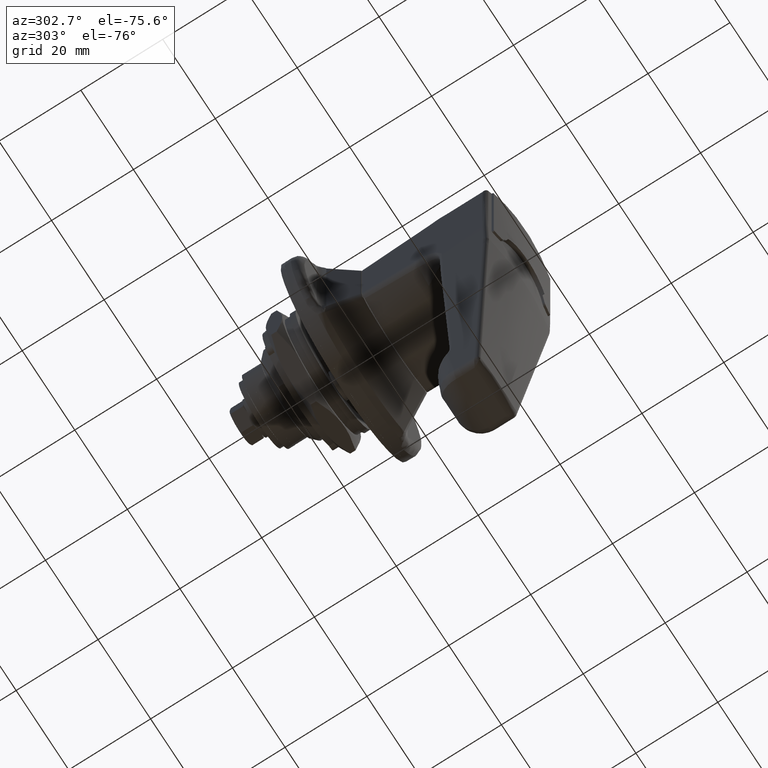
[diagram: clean part render]
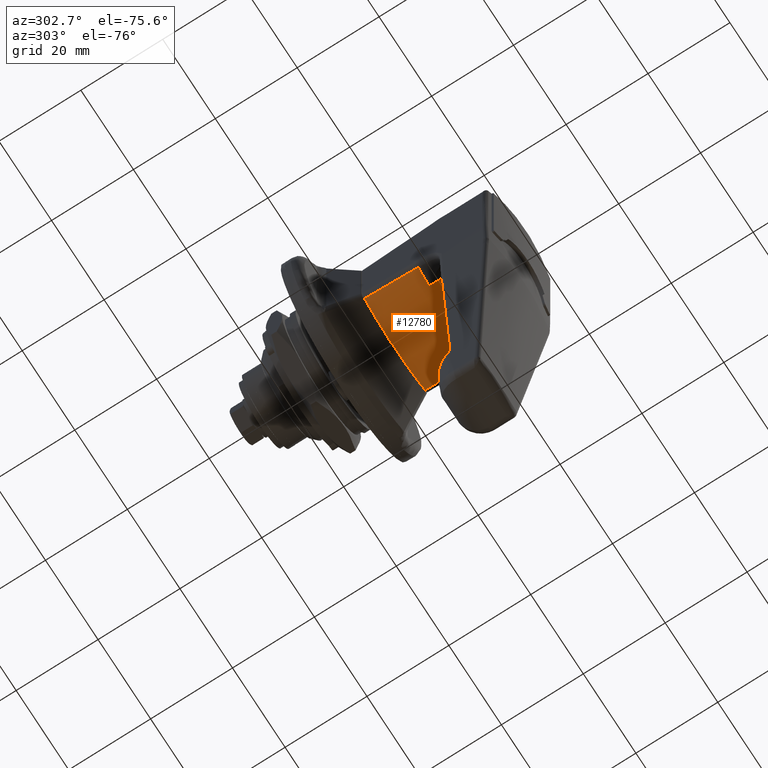
[diagram: same view with one face highlighted and labeled with its STEP entity id]
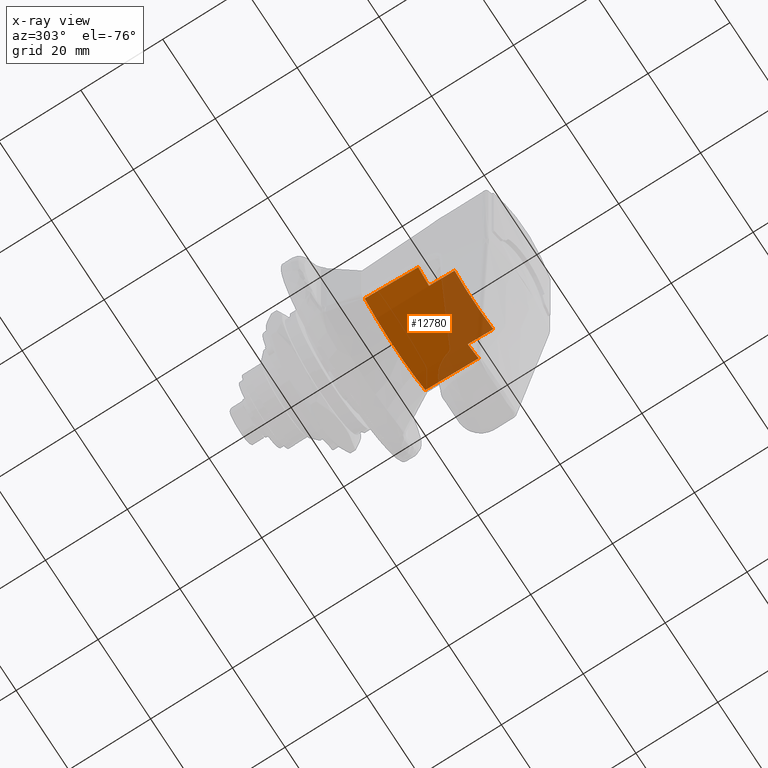
[diagram: x-ray of the same camera — body ghosted, the highlighted face saturated]
A machine part, auxiliary view. The second image highlights one B-rep face of the part: STEP entity #12780.
The next image is the same camera in x-ray: the body ghosted, the highlighted face saturated — about 33% of this face is hidden behind the body in this view.
In plain terms, the highlighted face is a freeform B-spline surface patch.
Its self-contained STEP definition (entity closure, byte-faithful):
#5366=CARTESIAN_POINT('',(-12.500000000000000,-11.544799616762139,-10.727455828510220));
#5367=VERTEX_POINT('',#5366);
#5397=CARTESIAN_POINT('',(-25.568854370816599,-11.483614284404000,-12.209910134553599));
#5398=VERTEX_POINT('',#5397);
#5412=CARTESIAN_POINT('',(-12.500000000000000,-11.544799616762139,-10.727455828510220));
#5413=CARTESIAN_POINT('',(-16.855539067573680,-11.523139544758299,-11.228108435169320));
#5414=CARTESIAN_POINT('',(-21.211887361958109,-11.502818028004210,-11.721739926355429));
#5415=CARTESIAN_POINT('',(-25.568854370816599,-11.483614284404000,-12.209910134553599));
#5416=QUASI_UNIFORM_CURVE('',3,(#5412,#5413,#5414,#5415),.UNSPECIFIED.,.F.,.U.);
#5417=EDGE_CURVE('',#5367,#5398,#5416,.T.);
#6825=CARTESIAN_POINT('',(-25.568854370816599,11.483614284404000,-12.209910134553560));
#6826=VERTEX_POINT('',#6825);
#6890=CARTESIAN_POINT('',(-12.500000000000000,11.544799616762161,-10.727455828510200));
#6891=VERTEX_POINT('',#6890);
#6914=CARTESIAN_POINT('',(-25.568854370816599,11.483614284404000,-12.209910134553541));
#6915=CARTESIAN_POINT('',(-21.211887190234560,11.502818028761100,-11.721739907114850));
#6916=CARTESIAN_POINT('',(-16.855539276879380,11.523139543717431,-11.228108459228190));
#6917=CARTESIAN_POINT('',(-12.500000000000000,11.544799616762139,-10.727455828510200));
#6918=QUASI_UNIFORM_CURVE('',3,(#6914,#6915,#6916,#6917),.UNSPECIFIED.,.F.,.U.);
#6919=EDGE_CURVE('',#6826,#6891,#6918,.T.);
#9877=CARTESIAN_POINT('',(-25.568854370816599,7.366160115824199,-14.046622186351801));
#9878=VERTEX_POINT('',#9877);
#9879=CARTESIAN_POINT('',(-25.568854370816599,7.366160115824205,-14.046622186351810));
#9880=CARTESIAN_POINT('',(-25.568854370816599,9.514371325748535,-13.328867439109526));
#9881=CARTESIAN_POINT('',(-25.568854370816599,11.483614284404011,-12.209910134553580));
#9889=(BOUNDED_CURVE()B_SPLINE_CURVE(2,(#9879,#9880,#9881),.UNSPECIFIED.,.F.,.U.)CURVE()GEOMETRIC_REPRESENTATION_ITEM()QUASI_UNIFORM_CURVE()RATIONAL_B_SPLINE_CURVE((1.0,0.995286313680354,1.0))REPRESENTATION_ITEM(''));
#9890=EDGE_CURVE('',#9878,#6826,#9889,.T.);
#9967=CARTESIAN_POINT('',(-25.568854370816599,-7.366160115823630,-14.046622186352000));
#9968=VERTEX_POINT('',#9967);
#9969=CARTESIAN_POINT('',(-25.568854370816599,-11.483614284404000,-12.209910134553610));
#9970=CARTESIAN_POINT('',(-25.568854370816602,-9.514371325748256,-13.328867439109713));
#9971=CARTESIAN_POINT('',(-25.568854370816599,-7.366160115823648,-14.046622186352019));
#9979=(BOUNDED_CURVE()B_SPLINE_CURVE(2,(#9969,#9970,#9971),.UNSPECIFIED.,.F.,.U.)CURVE()GEOMETRIC_REPRESENTATION_ITEM()QUASI_UNIFORM_CURVE()RATIONAL_B_SPLINE_CURVE((1.0,0.995286313680353,1.0))REPRESENTATION_ITEM(''));
#9980=EDGE_CURVE('',#5398,#9968,#9979,.T.);
#11621=CARTESIAN_POINT('',(-31.812009514778559,7.382904629250580,-14.667201120378699));
#11622=VERTEX_POINT('',#11621);
#12132=CARTESIAN_POINT('',(-31.812009514778701,-7.382904629259170,-14.667201120375919));
#12133=VERTEX_POINT('',#12132);
#12311=CARTESIAN_POINT('',(-31.812009514778591,7.382904629250580,-14.667201120378699));
#12312=CARTESIAN_POINT('',(-31.806754729762591,7.083561595264651,-14.764173418831991));
#12313=CARTESIAN_POINT('',(-31.801664824974068,6.782123492833700,-14.855295260424990));
#12314=CARTESIAN_POINT('',(-31.791922105842609,6.175033660008601,-15.025777787178001));
#12315=CARTESIAN_POINT('',(-31.787266927986479,5.869146148828927,-15.105172804853099));
#12316=CARTESIAN_POINT('',(-31.774185888687580,4.951249677149717,-15.324203266812340));
#12317=CARTESIAN_POINT('',(-31.766617837985141,4.337089586829030,-15.445299844357841));
#12318=CARTESIAN_POINT('',(-31.754289758865841,3.104422969221807,-15.638930200425120));
#12319=CARTESIAN_POINT('',(-31.744768241348751,1.867409462973651,-15.783992602001261));
#12320=CARTESIAN_POINT('',(-31.741500866108598,0.621760089024332,-15.832608275277259));
#12321=CARTESIAN_POINT('',(-31.741512180908821,-0.628258146861777,-15.832438940986689));
#12322=CARTESIAN_POINT('',(-31.743157609624070,-1.255451418622431,-15.807964904282670));
#12323=CARTESIAN_POINT('',(-31.749709488377029,-2.514341976014428,-15.708715245472630));
#12324=CARTESIAN_POINT('',(-31.754571333677230,-3.137626720459240,-15.634594284686941));
#12325=CARTESIAN_POINT('',(-31.767016417959869,-4.371608466077708,-15.438948078075351));
#12326=CARTESIAN_POINT('',(-31.782183722813858,-5.593224120579549,-15.195873765312321));
#12327=CARTESIAN_POINT('',(-31.801609044564341,-6.790433519717006,-14.859132378954151));
#12328=CARTESIAN_POINT('',(-31.812009514778701,-7.382904629259167,-14.667201120375919));
#12329=B_SPLINE_CURVE_WITH_KNOTS('',3,(#12311,#12312,#12313,#12314,#12315,#12316,#12317,#12318,#12319,#12320,#12321,#12322,#12323,#12324,#12325,#12326,#12327,#12328),.UNSPECIFIED.,.F.,.U.,(4,2,2,2,1,2,2,2,1,4),(0.0,0.062500000000000,0.125000000000000,0.250000000000000,0.375000000000000,0.500000000000000,0.625000000000000,0.750000000000000,0.875000000000000,1.0),.UNSPECIFIED.);
#12330=EDGE_CURVE('',#11622,#12133,#12329,.T.);
#12432=CARTESIAN_POINT('',(-25.568854370816599,7.366160115824199,-14.046622186351801));
#12433=CARTESIAN_POINT('',(-27.649895007099730,7.372161999072266,-14.253581161856751));
#12434=CARTESIAN_POINT('',(-29.730946951687070,7.377741070979279,-14.460438564194069));
#12435=CARTESIAN_POINT('',(-31.812009514778559,7.382904629250580,-14.667201120378699));
#12436=QUASI_UNIFORM_CURVE('',3,(#12432,#12433,#12434,#12435),.UNSPECIFIED.,.F.,.U.);
#12437=EDGE_CURVE('',#9878,#11622,#12436,.T.);
#12479=CARTESIAN_POINT('',(-31.812009514778801,-7.382904629259170,-14.667201120375941));
#12480=CARTESIAN_POINT('',(-29.730946995532371,-7.377741071088089,-14.460438568550289));
#12481=CARTESIAN_POINT('',(-27.649895051240261,-7.372161999199584,-14.253581166246510));
#12482=CARTESIAN_POINT('',(-25.568854370816599,-7.366160115823647,-14.046622186351980));
#12483=QUASI_UNIFORM_CURVE('',3,(#12479,#12480,#12481,#12482),.UNSPECIFIED.,.F.,.U.);
#12484=EDGE_CURVE('',#12133,#9968,#12483,.T.);
#12744=CARTESIAN_POINT('',(-12.017199762130531,-12.228098330369770,-10.233281746128061));
#12745=CARTESIAN_POINT('',(-32.306879758594903,-13.304391642870289,-11.838139564416650));
#12746=CARTESIAN_POINT('',(-12.017199762130533,0.186175451075092,-18.558879003565000));
#12747=CARTESIAN_POINT('',(-32.306879758594903,0.202562250357383,-20.896539618221112));
#12748=CARTESIAN_POINT('',(-12.017199762130538,12.482511543199855,-10.060062502238450));
#12749=CARTESIAN_POINT('',(-32.306879758594889,13.581197809386470,-11.649673901275426));
#12757=(BOUNDED_SURFACE()B_SPLINE_SURFACE(1,2,((#12744,#12746,#12748),(#12745,#12747,#12749)),.UNSPECIFIED.,.F.,.F.,.U.)B_SPLINE_SURFACE_WITH_KNOTS((2,2),(3,3),(0.0,20.381488912009889),(0.0,29.438497526841498),.UNSPECIFIED.)GEOMETRIC_REPRESENTATION_ITEM()RATIONAL_B_SPLINE_SURFACE(((1.0,0.823266384727739,0.991958523862304),(1.0,0.823266384727739,0.991958523862304)))REPRESENTATION_ITEM('')SURFACE());
#12758=ORIENTED_EDGE('',*,*,#9890,.T.);
#12759=ORIENTED_EDGE('',*,*,#6919,.T.);
#12760=CARTESIAN_POINT('',(-12.500000000000000,11.544799616762161,-10.727455828510200));
#12761=CARTESIAN_POINT('',(-12.500000000000007,1.841582E-014,-17.844407506927165));
#12762=CARTESIAN_POINT('',(-12.500000000000000,-11.544799616762139,-10.727455828510220));
#12770=(BOUNDED_CURVE()B_SPLINE_CURVE(2,(#12760,#12761,#12762),.UNSPECIFIED.,.F.,.U.)CURVE()GEOMETRIC_REPRESENTATION_ITEM()QUASI_UNIFORM_CURVE()RATIONAL_B_SPLINE_CURVE((1.0,0.851247992205016,1.0))REPRESENTATION_ITEM(''));
#12771=EDGE_CURVE('',#6891,#5367,#12770,.T.);
#12772=ORIENTED_EDGE('',*,*,#12771,.T.);
#12773=ORIENTED_EDGE('',*,*,#5417,.T.);
#12774=ORIENTED_EDGE('',*,*,#9980,.T.);
#12775=ORIENTED_EDGE('',*,*,#12484,.F.);
#12776=ORIENTED_EDGE('',*,*,#12330,.F.);
#12777=ORIENTED_EDGE('',*,*,#12437,.F.);
#12778=EDGE_LOOP('',(#12758,#12759,#12772,#12773,#12774,#12775,#12776,#12777));
#12779=FACE_OUTER_BOUND('',#12778,.T.);
#12780=ADVANCED_FACE('',(#12779),#12757,.T.);